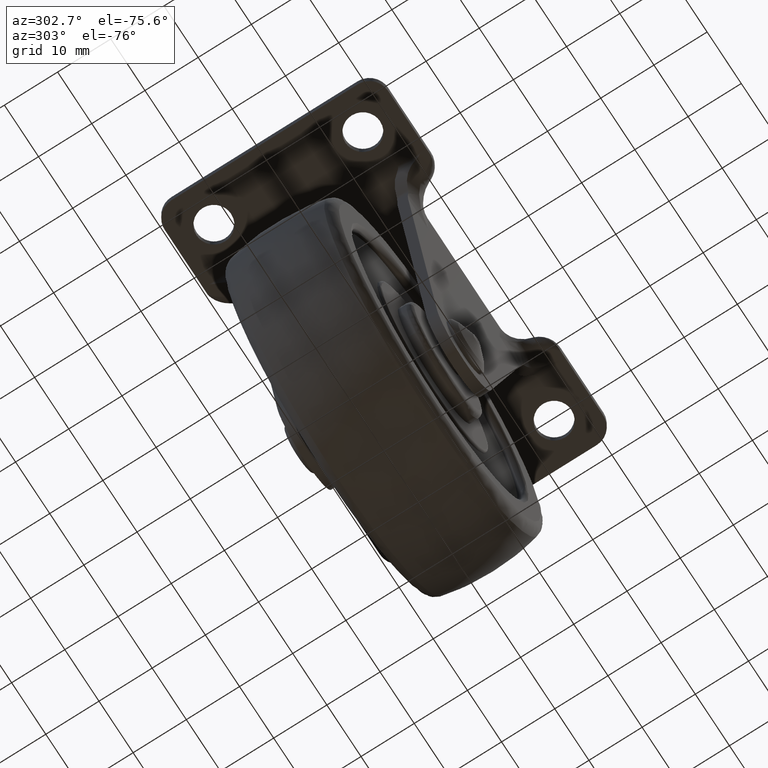
[diagram: clean part render]
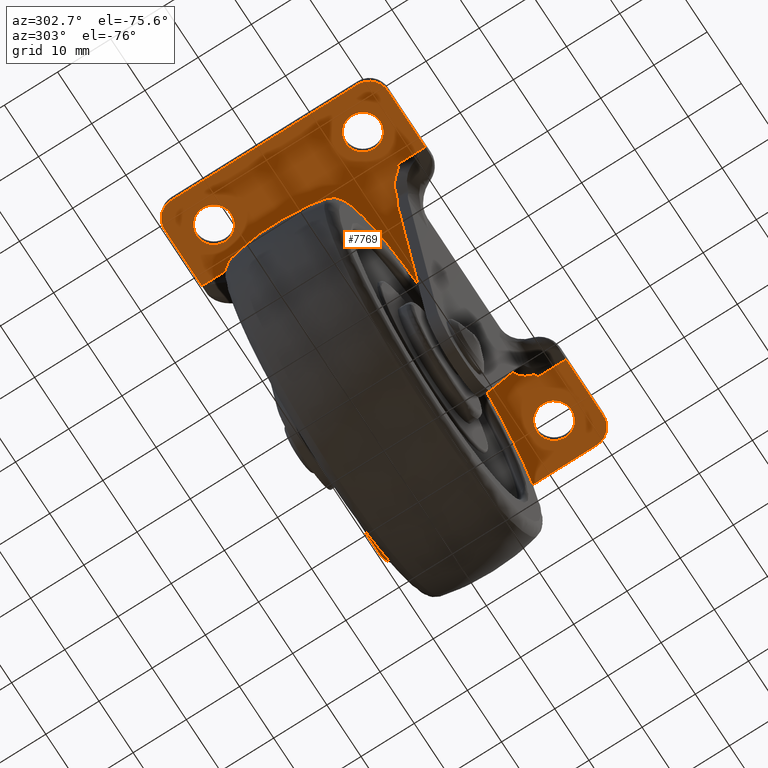
[diagram: same view with one face highlighted and labeled with its STEP entity id]
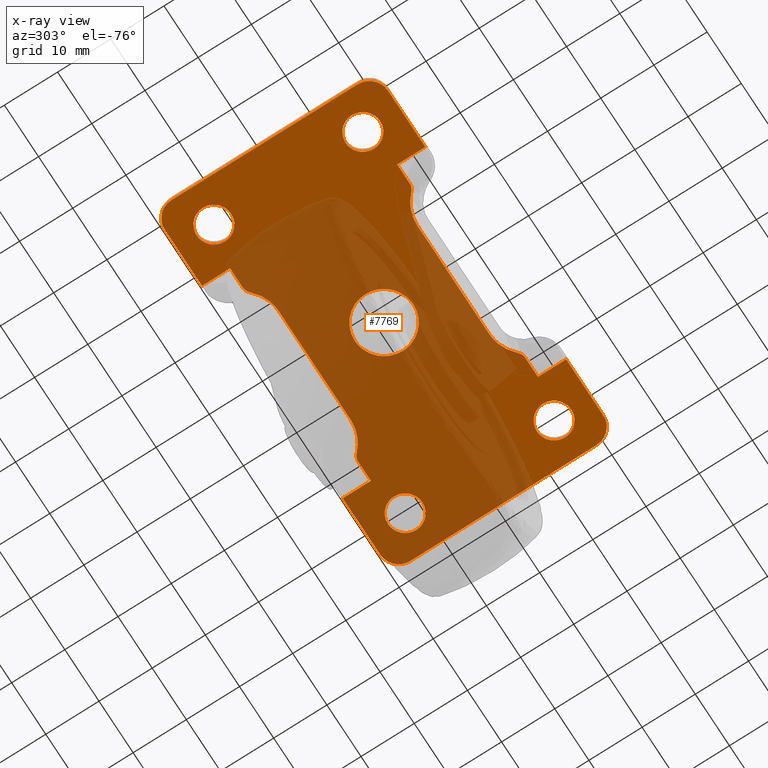
[diagram: x-ray of the same camera — body ghosted, the highlighted face saturated]
A machine part, auxiliary view. The second image highlights one B-rep face of the part: STEP entity #7769.
The next image is the same camera in x-ray: the body ghosted, the highlighted face saturated — about 63% of this face is hidden behind the body in this view.
In plain terms, the highlighted face is a freeform B-spline surface patch.
Its self-contained STEP definition (entity closure, byte-faithful):
#3572=CARTESIAN_POINT('',(-30.098661789977690,16.481556180181911,52.499999999991360));
#3573=VERTEX_POINT('',#3572);
#3574=CARTESIAN_POINT('',(-31.250000000000000,13.999999999999821,52.500000000000000));
#3575=VERTEX_POINT('',#3574);
#3576=CARTESIAN_POINT('',(-30.098661789977690,16.481556180181911,52.499999999991360));
#3577=CARTESIAN_POINT('',(-30.368329601986499,16.253791567625179,52.499999999992177));
#3578=CARTESIAN_POINT('',(-30.745030923500970,15.811276878713761,52.499999999993761));
#3579=CARTESIAN_POINT('',(-31.149033346961421,14.955750958150171,52.499999999996582));
#3580=CARTESIAN_POINT('',(-31.250274453536719,14.367705374948439,52.499999999998977));
#3581=CARTESIAN_POINT('',(-31.250000000000000,13.999999999999821,52.500000000000000));
#3582=B_SPLINE_CURVE_WITH_KNOTS('',3,(#3576,#3577,#3578,#3579,#3580,#3581),.UNSPECIFIED.,.F.,.U.,(4,1,1,4),(0.000000037711875,1.058860835155435,1.720636786568688,2.823627206410369),.UNSPECIFIED.);
#3583=EDGE_CURVE('',#3573,#3575,#3582,.T.);
#3642=CARTESIAN_POINT('',(-25.642533500496661,16.237152048780299,52.500000000007127));
#3643=VERTEX_POINT('',#3642);
#3649=CARTESIAN_POINT('',(-24.750000000000000,13.999999999999821,52.500000000000000));
#3650=VERTEX_POINT('',#3649);
#3651=CARTESIAN_POINT('',(-24.750000000000000,13.999999999999821,52.500000000000000));
#3652=CARTESIAN_POINT('',(-24.749746360557630,14.359886512240969,52.500000000001137));
#3653=CARTESIAN_POINT('',(-24.831968434644430,14.848059408246799,52.500000000002771));
#3654=CARTESIAN_POINT('',(-25.146350814995419,15.609688986308401,52.500000000004938));
#3655=CARTESIAN_POINT('',(-25.412377427759829,15.994880342580871,52.500000000006622));
#3656=CARTESIAN_POINT('',(-25.642533500496661,16.237152048780299,52.500000000007127));
#3657=B_SPLINE_CURVE_WITH_KNOTS('',3,(#3651,#3652,#3653,#3654,#3655,#3656),.UNSPECIFIED.,.F.,.U.,(4,1,1,4),(0.000000024653561,1.079529442259453,1.465052341899836,2.467473464617288),.UNSPECIFIED.);
#3658=EDGE_CURVE('',#3650,#3643,#3657,.T.);
#3660=CARTESIAN_POINT('',(-27.999998512203099,10.750000000000160,52.500000000000007));
#3661=VERTEX_POINT('',#3660);
#3662=CARTESIAN_POINT('',(-27.999998512203099,10.750000000000160,52.500000000000007));
#3663=CARTESIAN_POINT('',(-27.667608111232770,10.749821445492939,52.499999999999972));
#3664=CARTESIAN_POINT('',(-27.202415238764662,10.822027757390719,52.500000000000007));
#3665=CARTESIAN_POINT('',(-26.543765454467451,11.076108114923080,52.500000000000171));
#3666=CARTESIAN_POINT('',(-26.027485294385890,11.385524828995059,52.499999999999858));
#3667=CARTESIAN_POINT('',(-25.589332076850258,11.797632544753700,52.500000000000128));
#3668=CARTESIAN_POINT('',(-25.226421806796690,12.274646242852830,52.499999999999822));
#3669=CARTESIAN_POINT('',(-24.868945896578300,12.963223406565580,52.500000000000803));
#3670=CARTESIAN_POINT('',(-24.749696517338361,13.601120437263400,52.499999999999538));
#3671=CARTESIAN_POINT('',(-24.750000000000000,13.999999999999821,52.500000000000000));
#3672=B_SPLINE_CURVE_WITH_KNOTS('',3,(#3662,#3663,#3664,#3665,#3666,#3667,#3668,#3669,#3670,#3671),.UNSPECIFIED.,.F.,.U.,(4,1,1,1,1,1,1,4),(0.000000114481184,0.997092126575496,1.395934548560135,2.113858974554451,2.791832149275136,3.190693407932026,3.908608178187883,5.105119255801762),.UNSPECIFIED.);
#3673=EDGE_CURVE('',#3661,#3650,#3672,.T.);
#3675=CARTESIAN_POINT('',(-31.250000000000000,13.999999999999821,52.500000000000000));
#3676=CARTESIAN_POINT('',(-31.250328386182620,13.614410811597320,52.500000000000078));
#3677=CARTESIAN_POINT('',(-31.135033350657391,12.976506688446641,52.499999999999822));
#3678=CARTESIAN_POINT('',(-30.781679298603191,12.285230208732751,52.500000000000270));
#3679=CARTESIAN_POINT('',(-30.426783644027289,11.818841434631160,52.499999999999837));
#3680=CARTESIAN_POINT('',(-30.032685283972839,11.438958765962949,52.500000000000192));
#3681=CARTESIAN_POINT('',(-29.472818145901769,11.074691552133711,52.499999999999922));
#3682=CARTESIAN_POINT('',(-28.784349861490242,10.813972053740221,52.499999999999602));
#3683=CARTESIAN_POINT('',(-28.265889245304251,10.749938178102621,52.500000000000313));
#3684=CARTESIAN_POINT('',(-27.999998512203099,10.750000000000160,52.500000000000007));
#3685=B_SPLINE_CURVE_WITH_KNOTS('',3,(#3675,#3676,#3677,#3678,#3679,#3680,#3681,#3682,#3683,#3684),.UNSPECIFIED.,.F.,.U.,(4,1,1,1,1,1,1,4),(0.000000113969533,1.156626437965158,1.914428036371264,2.313287977202250,2.911501012921430,3.549651169805909,4.307458497366348,5.105120932906186),.UNSPECIFIED.);
#3686=EDGE_CURVE('',#3575,#3661,#3685,.T.);
#3705=CARTESIAN_POINT('',(-28.000001487796940,17.249999999999488,52.500000000000000));
#3706=VERTEX_POINT('',#3705);
#3707=CARTESIAN_POINT('',(-28.000001487796940,17.249999999999488,52.500000000000000));
#3708=CARTESIAN_POINT('',(-28.356522567413961,17.250241258936281,52.499999999998629));
#3709=CARTESIAN_POINT('',(-28.855437342599320,17.167032159722769,52.499999999996248));
#3710=CARTESIAN_POINT('',(-29.558930400750508,16.873794824928218,52.499999999993797));
#3711=CARTESIAN_POINT('',(-29.899087672862478,16.650417765858698,52.499999999992028));
#3712=CARTESIAN_POINT('',(-30.098661789977690,16.481556180181911,52.499999999991360));
#3713=B_SPLINE_CURVE_WITH_KNOTS('',3,(#3707,#3708,#3709,#3710,#3711,#3712),.UNSPECIFIED.,.F.,.U.,(4,1,1,4),(0.000000010974556,1.069466073523073,1.497251976314295,2.281527074584032),.UNSPECIFIED.);
#3714=EDGE_CURVE('',#3706,#3573,#3713,.T.);
#3716=CARTESIAN_POINT('',(-25.642533500496661,16.237152048780299,52.500000000007127));
#3717=CARTESIAN_POINT('',(-25.859937401773241,16.466463076348361,52.500000000006288));
#3718=CARTESIAN_POINT('',(-26.264092213434441,16.783532182090848,52.500000000005478));
#3719=CARTESIAN_POINT('',(-27.065997056766559,17.152493204050948,52.500000000002707));
#3720=CARTESIAN_POINT('',(-27.629042628810460,17.250247398830609,52.500000000000583));
#3721=CARTESIAN_POINT('',(-28.000001487796940,17.249999999999488,52.500000000000000));
#3722=B_SPLINE_CURVE_WITH_KNOTS('',3,(#3716,#3717,#3718,#3719,#3720,#3721),.UNSPECIFIED.,.F.,.U.,(4,1,1,4),(0.000000030440757,0.947912162226855,1.524889162315658,2.637647932548999),.UNSPECIFIED.);
#3723=EDGE_CURVE('',#3643,#3706,#3722,.T.);
#3776=CARTESIAN_POINT('',(-3.551581426019732,4.199556222064952,52.499999999997122));
#3777=VERTEX_POINT('',#3776);
#3778=CARTESIAN_POINT('',(-5.500000000000000,0.0,52.500000000000000));
#3779=VERTEX_POINT('',#3778);
#3780=CARTESIAN_POINT('',(-3.551581426019732,4.199556222064952,52.499999999997122));
#3781=CARTESIAN_POINT('',(-3.988900745824201,3.830136690288739,52.499999999997243));
#3782=CARTESIAN_POINT('',(-4.499153836608889,3.239008855041461,52.499999999997989));
#3783=CARTESIAN_POINT('',(-5.015037824932064,2.299574592953851,52.499999999998202));
#3784=CARTESIAN_POINT('',(-5.382011587960756,1.343822855673017,52.499999999999247));
#3785=CARTESIAN_POINT('',(-5.500219460398634,0.522666781126346,52.499999999999673));
#3786=CARTESIAN_POINT('',(-5.500000000000000,0.0,52.500000000000000));
#3787=B_SPLINE_CURVE_WITH_KNOTS('',3,(#3780,#3781,#3782,#3783,#3784,#3785,#3786),.UNSPECIFIED.,.F.,.U.,(4,1,1,1,4),(0.000000026304917,1.717261919507664,2.314571365826936,3.210516888121754,4.778445691131342),.UNSPECIFIED.);
#3788=EDGE_CURVE('',#3777,#3779,#3787,.T.);
#3852=CARTESIAN_POINT('',(3.989558783508025,3.785950024211681,52.500000000008043));
#3853=VERTEX_POINT('',#3852);
#3859=CARTESIAN_POINT('',(5.500000000000000,0.0,52.500000000000000));
#3860=VERTEX_POINT('',#3859);
#3861=CARTESIAN_POINT('',(5.500000000000000,0.0,52.500000000000000));
#3862=CARTESIAN_POINT('',(5.500078159788325,0.413226645726852,52.500000000000753));
#3863=CARTESIAN_POINT('',(5.406434155477175,1.239634597800339,52.500000000002942));
#3864=CARTESIAN_POINT('',(4.941894710706263,2.561125299682399,52.500000000004803));
#3865=CARTESIAN_POINT('',(4.379037481905658,3.375959660547900,52.500000000007631));
#3866=CARTESIAN_POINT('',(3.989558783508025,3.785950024211681,52.500000000008043));
#3867=B_SPLINE_CURVE_WITH_KNOTS('',3,(#3861,#3862,#3863,#3864,#3865,#3866),.UNSPECIFIED.,.F.,.U.,(4,1,1,4),(0.000000021852081,1.239671201343833,2.479326911721378,4.175724684555684),.UNSPECIFIED.);
#3868=EDGE_CURVE('',#3860,#3853,#3867,.T.);
#3870=CARTESIAN_POINT('',(0.000001138689718,-5.499999999999882,52.500000000000000));
#3871=VERTEX_POINT('',#3870);
#3872=CARTESIAN_POINT('',(0.000001138689718,-5.499999999999882,52.500000000000000));
#3873=CARTESIAN_POINT('',(0.404973006984577,-5.500065852747665,52.500000000000071));
#3874=CARTESIAN_POINT('',(1.124897220854954,-5.420126004937364,52.499999999999808));
#3875=CARTESIAN_POINT('',(2.007496584686009,-5.140485679887812,52.500000000000178));
#3876=CARTESIAN_POINT('',(2.738639474441271,-4.789137310518288,52.499999999999829));
#3877=CARTESIAN_POINT('',(3.567873710661660,-4.242644513432174,52.500000000000043));
#3878=CARTESIAN_POINT('',(4.376464157359985,-3.413877611620072,52.500000000000362));
#3879=CARTESIAN_POINT('',(4.969093111110061,-2.424872621588161,52.499999999999318));
#3880=CARTESIAN_POINT('',(5.384820117807943,-1.327306263827927,52.500000000000398));
#3881=CARTESIAN_POINT('',(5.500189096772617,-0.517487068537187,52.500000000000057));
#3882=CARTESIAN_POINT('',(5.500000000000000,0.0,52.500000000000000));
#3883=B_SPLINE_CURVE_WITH_KNOTS('',3,(#3872,#3873,#3874,#3875,#3876,#3877,#3878,#3879,#3880,#3881,#3882),.UNSPECIFIED.,.F.,.U.,(4,1,1,1,1,1,1,1,4),(0.000000089295414,1.214913431097486,2.159858841467408,2.767321581127794,3.644786817583049,5.129656969635695,6.209587930329921,7.087036722392178,8.639433364029008),.UNSPECIFIED.);
#3884=EDGE_CURVE('',#3871,#3860,#3883,.T.);
#3886=CARTESIAN_POINT('',(-5.500000000000000,0.0,52.500000000000000));
#3887=CARTESIAN_POINT('',(-5.500354852466589,-0.585001209462418,52.500000000000092));
#3888=CARTESIAN_POINT('',(-5.336871856045019,-1.597213310112597,52.499999999999993));
#3889=CARTESIAN_POINT('',(-4.782415114103307,-2.788288179080238,52.499999999999801));
#3890=CARTESIAN_POINT('',(-4.168997815071223,-3.625929759843924,52.500000000000277));
#3891=CARTESIAN_POINT('',(-3.409442052118405,-4.367221919094090,52.499999999999922));
#3892=CARTESIAN_POINT('',(-2.432743184867703,-4.985733389093027,52.499999999999808));
#3893=CARTESIAN_POINT('',(-1.237370091658040,-5.405074302908625,52.500000000000220));
#3894=CARTESIAN_POINT('',(-0.427476091015921,-5.500099297321536,52.499999999999453));
#3895=CARTESIAN_POINT('',(0.000001138689718,-5.499999999999882,52.500000000000000));
#3896=B_SPLINE_CURVE_WITH_KNOTS('',3,(#3886,#3887,#3888,#3889,#3890,#3891,#3892,#3893,#3894,#3895),.UNSPECIFIED.,.F.,.U.,(4,1,1,1,1,1,1,4),(0.000000088900757,1.754884981003581,3.037308870661370,3.914773852422925,4.859679062923863,6.209588853069683,7.357021990557816,8.639434647605755),.UNSPECIFIED.);
#3897=EDGE_CURVE('',#3779,#3871,#3896,.T.);
#3916=CARTESIAN_POINT('',(-0.000001138689795,5.499999999999882,52.500000000000000));
#3917=VERTEX_POINT('',#3916);
#3918=CARTESIAN_POINT('',(-0.000001138689795,5.499999999999882,52.500000000000000));
#3919=CARTESIAN_POINT('',(-0.361970635149833,5.500049089881307,52.499999999999673));
#3920=CARTESIAN_POINT('',(-0.985339900924180,5.438221140726245,52.499999999999282));
#3921=CARTESIAN_POINT('',(-1.957200905857065,5.170621038181984,52.499999999998387));
#3922=CARTESIAN_POINT('',(-2.796974228034498,4.770917603442313,52.499999999997691));
#3923=CARTESIAN_POINT('',(-3.336624025955320,4.381354867170856,52.499999999997407));
#3924=CARTESIAN_POINT('',(-3.551581426019732,4.199556222064952,52.499999999997122));
#3925=B_SPLINE_CURVE_WITH_KNOTS('',3,(#3918,#3919,#3920,#3921,#3922,#3923,#3924),.UNSPECIFIED.,.F.,.U.,(4,1,1,1,4),(0.000000019436184,1.085904343702968,1.870180934309537,3.016398949008563,3.860989230047137),.UNSPECIFIED.);
#3926=EDGE_CURVE('',#3917,#3777,#3925,.T.);
#3928=CARTESIAN_POINT('',(3.989558783508025,3.785950024211681,52.500000000008043));
#3929=CARTESIAN_POINT('',(3.605664526524810,4.190913180013308,52.500000000007233));
#3930=CARTESIAN_POINT('',(2.992049273899332,4.666016291600760,52.500000000005912));
#3931=CARTESIAN_POINT('',(2.006588621704444,5.142188967490433,52.500000000004427));
#3932=CARTESIAN_POINT('',(1.115898328980586,5.421969244737726,52.500000000001251));
#3933=CARTESIAN_POINT('',(0.395227546658565,5.500071724916941,52.500000000001442));
#3934=CARTESIAN_POINT('',(-0.000001138689795,5.499999999999882,52.500000000000000));
#3935=B_SPLINE_CURVE_WITH_KNOTS('',3,(#3928,#3929,#3930,#3931,#3932,#3933,#3934),.UNSPECIFIED.,.F.,.U.,(4,1,1,1,4),(0.000000026247402,1.673892032973929,2.301586752702686,3.278036600693514,4.463710417301790),.UNSPECIFIED.);
#3936=EDGE_CURVE('',#3853,#3917,#3935,.T.);
#3990=CARTESIAN_POINT('',(25.901338210022310,16.481556180181911,52.499999999991353));
#3991=VERTEX_POINT('',#3990);
#3992=CARTESIAN_POINT('',(24.750000000000000,13.999999999999821,52.500000000000000));
#3993=VERTEX_POINT('',#3992);
#3994=CARTESIAN_POINT('',(25.901338210022310,16.481556180181911,52.499999999991353));
#3995=CARTESIAN_POINT('',(25.710417929834239,16.320147047529471,52.499999999991921));
#3996=CARTESIAN_POINT('',(25.345813484526200,15.931409304546699,52.499999999993399));
#3997=CARTESIAN_POINT('',(24.977227385932959,15.271042592412689,52.499999999995211));
#3998=CARTESIAN_POINT('',(24.786428552931010,14.602958257901800,52.499999999998650));
#3999=CARTESIAN_POINT('',(24.749986172022950,14.191181056748690,52.499999999998678));
#4000=CARTESIAN_POINT('',(24.750000000000000,13.999999999999821,52.500000000000000));
#4001=B_SPLINE_CURVE_WITH_KNOTS('',3,(#3994,#3995,#3996,#3997,#3998,#3999,#4000),.UNSPECIFIED.,.F.,.U.,(4,1,1,1,4),(0.000000037713403,0.750027081717976,1.588274717514533,2.250079523646392,2.823627206410403),.UNSPECIFIED.);
#4002=EDGE_CURVE('',#3991,#3993,#4001,.T.);
#4062=CARTESIAN_POINT('',(30.357466499503339,16.237152048780299,52.500000000007127));
#4063=VERTEX_POINT('',#4062);
#4069=CARTESIAN_POINT('',(31.250000000000000,13.999999999999821,52.500000000000000));
#4070=VERTEX_POINT('',#4069);
#4071=CARTESIAN_POINT('',(31.250000000000000,13.999999999999821,52.500000000000000));
#4072=CARTESIAN_POINT('',(31.250241723379411,14.359871317779101,52.500000000001123));
#4073=CARTESIAN_POINT('',(31.146449651792480,14.976582000014851,52.500000000002977));
#4074=CARTESIAN_POINT('',(30.785547589399481,15.722109410076730,52.500000000005898));
#4075=CARTESIAN_POINT('',(30.499015674080798,16.088009603694641,52.500000000006203));
#4076=CARTESIAN_POINT('',(30.357466499503339,16.237152048780299,52.500000000007127));
#4077=B_SPLINE_CURVE_WITH_KNOTS('',3,(#4071,#4072,#4073,#4074,#4075,#4076),.UNSPECIFIED.,.F.,.U.,(4,1,1,4),(0.000000024656867,1.079529442261325,1.850605107540133,2.467473464617248),.UNSPECIFIED.);
#4078=EDGE_CURVE('',#4070,#4063,#4077,.T.);
#4080=CARTESIAN_POINT('',(28.000001487796890,10.750000000000160,52.499999999999993));
#4081=VERTEX_POINT('',#4080);
#4082=CARTESIAN_POINT('',(28.000001487796890,10.750000000000160,52.499999999999993));
#4083=CARTESIAN_POINT('',(28.398890265591302,10.749666302526210,52.500000000000107));
#4084=CARTESIAN_POINT('',(29.036760892713950,10.868989452335921,52.499999999999723));
#4085=CARTESIAN_POINT('',(29.784735433451552,11.257205294546280,52.500000000000362));
#4086=CARTESIAN_POINT('',(30.230718185205589,11.618681518487390,52.499999999999602));
#4087=CARTESIAN_POINT('',(30.597453765432419,12.023319121603590,52.500000000000362));
#4088=CARTESIAN_POINT('',(30.925314407182309,12.527172023832470,52.499999999999517));
#4089=CARTESIAN_POINT('',(31.186032674122892,13.215651515823099,52.500000000000803));
#4090=CARTESIAN_POINT('',(31.250054301078890,13.734109797403500,52.499999999999218));
#4091=CARTESIAN_POINT('',(31.250000000000000,13.999999999999821,52.500000000000000));
#4092=B_SPLINE_CURVE_WITH_KNOTS('',3,(#4082,#4083,#4084,#4085,#4086,#4087,#4088,#4089,#4090,#4091),.UNSPECIFIED.,.F.,.U.,(4,1,1,1,1,1,1,4),(0.000000114502678,1.196510939627053,1.914427407155122,2.512710559394672,2.911500054466228,3.549650002969130,4.307457081604380,5.105119255801761),.UNSPECIFIED.);
#4093=EDGE_CURVE('',#4081,#4070,#4092,.T.);
#4095=CARTESIAN_POINT('',(24.750000000000000,13.999999999999821,52.500000000000000));
#4096=CARTESIAN_POINT('',(24.749957672425879,13.760698296657280,52.500000000000057));
#4097=CARTESIAN_POINT('',(24.801623563254630,13.295407530996719,52.499999999999929));
#4098=CARTESIAN_POINT('',(25.027945284039909,12.624072707883130,52.500000000000107));
#4099=CARTESIAN_POINT('',(25.385531114684952,12.027487607352951,52.499999999999851));
#4100=CARTESIAN_POINT('',(25.797633188038361,11.589332742421130,52.500000000000128));
#4101=CARTESIAN_POINT('',(26.274643692658810,11.226407907809341,52.499999999999929));
#4102=CARTESIAN_POINT('',(26.963238510898229,10.869004582055100,52.500000000000050));
#4103=CARTESIAN_POINT('',(27.601111563927009,10.749644375945580,52.499999999999993));
#4104=CARTESIAN_POINT('',(28.000001487796890,10.750000000000160,52.499999999999993));
#4105=B_SPLINE_CURVE_WITH_KNOTS('',3,(#4095,#4096,#4097,#4098,#4099,#4100,#4101,#4102,#4103,#4104),.UNSPECIFIED.,.F.,.U.,(4,1,1,1,1,1,1,4),(0.000000113970027,0.717899858569404,1.395935006663654,2.113859669043706,2.791833067328239,3.190694457710095,3.908609462146321,5.105120932906185),.UNSPECIFIED.);
#4106=EDGE_CURVE('',#3993,#4081,#4105,.T.);
#4125=CARTESIAN_POINT('',(27.999998512203049,17.249999999999481,52.499999999999993));
#4126=VERTEX_POINT('',#4125);
#4127=CARTESIAN_POINT('',(27.999998512203049,17.249999999999481,52.499999999999993));
#4128=CARTESIAN_POINT('',(27.643476276765991,17.250241120369619,52.499999999998550));
#4129=CARTESIAN_POINT('',(27.144561212233590,17.167033941852139,52.499999999996511));
#4130=CARTESIAN_POINT('',(26.441073892626981,16.873789267448281,52.499999999993548));
#4131=CARTESIAN_POINT('',(26.100906227405162,16.650426323483320,52.499999999992177));
#4132=CARTESIAN_POINT('',(25.901338210022310,16.481556180181911,52.499999999991353));
#4133=B_SPLINE_CURVE_WITH_KNOTS('',3,(#4127,#4128,#4129,#4130,#4131,#4132),.UNSPECIFIED.,.F.,.U.,(4,1,1,4),(0.000000010973209,1.069466073522553,1.497251976314104,2.281527074584023),.UNSPECIFIED.);
#4134=EDGE_CURVE('',#4126,#3991,#4133,.T.);
#4136=CARTESIAN_POINT('',(30.357466499503339,16.237152048780299,52.500000000007127));
#4137=CARTESIAN_POINT('',(30.196727116286660,16.406572343982550,52.500000000006636));
#4138=CARTESIAN_POINT('',(29.806939936637750,16.737408416853171,52.500000000005471));
#4139=CARTESIAN_POINT('',(29.016456423106341,17.138251608488950,52.500000000003112));
#4140=CARTESIAN_POINT('',(28.370940522358381,17.250230016958820,52.500000000000988));
#4141=CARTESIAN_POINT('',(27.999998512203049,17.249999999999481,52.499999999999993));
#4142=B_SPLINE_CURVE_WITH_KNOTS('',3,(#4136,#4137,#4138,#4139,#4140,#4141),.UNSPECIFIED.,.F.,.U.,(4,1,1,4),(0.000000030442211,0.700625835264814,1.524889162315780,2.637647932549004),.UNSPECIFIED.);
#4143=EDGE_CURVE('',#4063,#4126,#4142,.T.);
#4197=CARTESIAN_POINT('',(25.901338210022310,-11.518443819817911,52.499999999991360));
#4198=VERTEX_POINT('',#4197);
#4199=CARTESIAN_POINT('',(24.750000000000000,-14.0,52.500000000000000));
#4200=VERTEX_POINT('',#4199);
#4201=CARTESIAN_POINT('',(25.901338210022310,-11.518443819817911,52.499999999991360));
#4202=CARTESIAN_POINT('',(25.631685974489152,-11.746217326469599,52.499999999992298));
#4203=CARTESIAN_POINT('',(25.196914606575149,-12.256761711557770,52.499999999993392));
#4204=CARTESIAN_POINT('',(24.826268620167308,-13.132341512329420,52.499999999998600));
#4205=CARTESIAN_POINT('',(24.749933439792368,-13.720576971699559,52.499999999997542));
#4206=CARTESIAN_POINT('',(24.750000000000000,-14.0,52.500000000000000));
#4207=B_SPLINE_CURVE_WITH_KNOTS('',3,(#4201,#4202,#4203,#4204,#4205,#4206),.UNSPECIFIED.,.F.,.U.,(4,1,1,4),(0.000000037712876,1.058860835155901,1.985361304846911,2.823627206410396),.UNSPECIFIED.);
#4208=EDGE_CURVE('',#4198,#4200,#4207,.T.);
#4270=CARTESIAN_POINT('',(30.357466499503339,-11.762847951219520,52.500000000007127));
#4271=VERTEX_POINT('',#4270);
#4277=CARTESIAN_POINT('',(31.250000000000000,-14.0,52.500000000000000));
#4278=VERTEX_POINT('',#4277);
#4279=CARTESIAN_POINT('',(31.250000000000000,-14.0,52.500000000000000));
#4280=CARTESIAN_POINT('',(31.250169857604039,-13.665843525080010,52.500000000001002));
#4281=CARTESIAN_POINT('',(31.160002412943179,-13.087631943389381,52.500000000002970));
#4282=CARTESIAN_POINT('',(30.821586405555720,-12.332251193164209,52.500000000005343));
#4283=CARTESIAN_POINT('',(30.525582372097858,-11.939937593831550,52.500000000006580));
#4284=CARTESIAN_POINT('',(30.357466499503339,-11.762847951219520,52.500000000007127));
#4285=B_SPLINE_CURVE_WITH_KNOTS('',3,(#4279,#4280,#4281,#4282,#4283,#4284),.UNSPECIFIED.,.F.,.U.,(4,1,1,4),(0.000000024654200,1.002421241344880,1.734939679346724,2.467473464617278),.UNSPECIFIED.);
#4286=EDGE_CURVE('',#4278,#4271,#4285,.T.);
#4288=CARTESIAN_POINT('',(28.000001487796901,-17.249999999999659,52.500000000000000));
#4289=VERTEX_POINT('',#4288);
#4290=CARTESIAN_POINT('',(28.000001487796901,-17.249999999999659,52.500000000000000));
#4291=CARTESIAN_POINT('',(28.385600637514180,-17.250327682109511,52.499999999999979));
#4292=CARTESIAN_POINT('',(28.903861769974210,-17.156642748025401,52.500000000000021));
#4293=CARTESIAN_POINT('',(29.573562642957121,-16.859670125588661,52.499999999999993));
#4294=CARTESIAN_POINT('',(30.144790643250928,-16.488307550588349,52.500000000000000));
#4295=CARTESIAN_POINT('',(30.644914433282839,-15.943171496846229,52.500000000000092));
#4296=CARTESIAN_POINT('',(31.011585637908482,-15.276767939672320,52.500000000000149));
#4297=CARTESIAN_POINT('',(31.205493782482900,-14.664723147607470,52.499999999999041));
#4298=CARTESIAN_POINT('',(31.250016958741909,-14.212709580675590,52.500000000000753));
#4299=CARTESIAN_POINT('',(31.250000000000000,-14.0,52.500000000000000));
#4300=B_SPLINE_CURVE_WITH_KNOTS('',3,(#4290,#4291,#4292,#4293,#4294,#4295,#4296,#4297,#4298,#4299),.UNSPECIFIED.,.F.,.U.,(4,1,1,1,1,1,1,4),(0.000000114482534,1.156626058423703,1.555470335478202,2.193620279158552,3.190693407932147,3.749070760498161,4.466985529434206,5.105119255801870),.UNSPECIFIED.);
#4301=EDGE_CURVE('',#4289,#4278,#4300,.T.);
#4303=CARTESIAN_POINT('',(24.750000000000000,-14.0,52.500000000000000));
#4304=CARTESIAN_POINT('',(24.749988459764008,-14.212707544024120,52.499999999999943));
#4305=CARTESIAN_POINT('',(24.801000287421122,-14.731223993138480,52.500000000000092));
#4306=CARTESIAN_POINT('',(25.036609767905549,-15.402697778021260,52.499999999999993));
#4307=CARTESIAN_POINT('',(25.457848804901982,-16.067851955475170,52.499999999999957));
#4308=CARTESIAN_POINT('',(25.970090444359890,-16.580118627518630,52.500000000000227));
#4309=CARTESIAN_POINT('',(26.647014774686369,-16.985820208799542,52.499999999999382));
#4310=CARTESIAN_POINT('',(27.321986830690228,-17.204181691633359,52.500000000000362));
#4311=CARTESIAN_POINT('',(27.787290542683941,-17.250021824578418,52.499999999999879));
#4312=CARTESIAN_POINT('',(28.000001487796901,-17.249999999999659,52.500000000000000));
#4313=B_SPLINE_CURVE_WITH_KNOTS('',3,(#4303,#4304,#4305,#4306,#4307,#4308,#4309,#4310,#4311,#4312),.UNSPECIFIED.,.F.,.U.,(4,1,1,1,1,1,1,4),(0.000000113975352,0.638138921713469,1.555470846247699,2.113859669045047,2.991262029376654,3.709186364515339,4.466986997800219,5.105120932906184),.UNSPECIFIED.);
#4314=EDGE_CURVE('',#4200,#4289,#4313,.T.);
#4333=CARTESIAN_POINT('',(27.999998512203049,-10.750000000000339,52.500000000000000));
#4334=VERTEX_POINT('',#4333);
#4335=CARTESIAN_POINT('',(27.999998512203049,-10.750000000000339,52.500000000000000));
#4336=CARTESIAN_POINT('',(27.643476016007309,-10.749759633052630,52.499999999998643));
#4337=CARTESIAN_POINT('',(27.144563382970869,-10.832967393976990,52.499999999996348));
#4338=CARTESIAN_POINT('',(26.441068776238179,-11.126205723482821,52.499999999993683));
#4339=CARTESIAN_POINT('',(26.100913024833300,-11.349581712373629,52.499999999992127));
#4340=CARTESIAN_POINT('',(25.901338210022310,-11.518443819817911,52.499999999991360));
#4341=B_SPLINE_CURVE_WITH_KNOTS('',3,(#4335,#4336,#4337,#4338,#4339,#4340),.UNSPECIFIED.,.F.,.U.,(4,1,1,4),(0.000000010973632,1.069466073522577,1.497251976314060,2.281527074584032),.UNSPECIFIED.);
#4342=EDGE_CURVE('',#4334,#4198,#4341,.T.);
#4344=CARTESIAN_POINT('',(30.357466499503339,-11.762847951219520,52.500000000007127));
#4345=CARTESIAN_POINT('',(30.092872435950571,-11.483595466427250,52.500000000006487));
#4346=CARTESIAN_POINT('',(29.564197247415450,-11.095453157038760,52.500000000004199));
#4347=CARTESIAN_POINT('',(28.728079701833209,-10.803520434783771,52.500000000002963));
#4348=CARTESIAN_POINT('',(28.233539821317269,-10.749967645687970,52.500000000000050));
#4349=CARTESIAN_POINT('',(27.999998512203049,-10.750000000000339,52.500000000000000));
#4350=B_SPLINE_CURVE_WITH_KNOTS('',3,(#4344,#4345,#4346,#4347,#4348,#4349),.UNSPECIFIED.,.F.,.U.,(4,1,1,4),(0.000000030442029,1.153984198535427,1.937022127717679,2.637647932548985),.UNSPECIFIED.);
#4351=EDGE_CURVE('',#4271,#4334,#4350,.T.);
#4404=CARTESIAN_POINT('',(-30.098661789977690,-11.518443819817911,52.499999999991360));
#4405=VERTEX_POINT('',#4404);
#4406=CARTESIAN_POINT('',(-31.250000000000000,-14.0,52.500000000000000));
#4407=VERTEX_POINT('',#4406);
#4408=CARTESIAN_POINT('',(-30.098661789977690,-11.518443819817911,52.499999999991360));
#4409=CARTESIAN_POINT('',(-30.289594196868830,-11.679844936084320,52.499999999991921));
#4410=CARTESIAN_POINT('',(-30.593363636802550,-12.003843182912171,52.499999999993122));
#4411=CARTESIAN_POINT('',(-30.971426088216671,-12.620631683846430,52.499999999995090));
#4412=CARTESIAN_POINT('',(-31.198948371264290,-13.279388558688400,52.499999999997797));
#4413=CARTESIAN_POINT('',(-31.250020994196909,-13.779407758475299,52.499999999998927));
#4414=CARTESIAN_POINT('',(-31.250000000000000,-14.0,52.500000000000000));
#4415=B_SPLINE_CURVE_WITH_KNOTS('',3,(#4408,#4409,#4410,#4411,#4412,#4413,#4414),.UNSPECIFIED.,.F.,.U.,(4,1,1,1,4),(0.000000037714174,0.750027081718925,1.323588890390183,2.161840666066802,2.823627206410369),.UNSPECIFIED.);
#4416=EDGE_CURVE('',#4405,#4407,#4415,.T.);
#4478=CARTESIAN_POINT('',(-25.642533500496668,-11.762847951219520,52.500000000007127));
#4479=VERTEX_POINT('',#4478);
#4485=CARTESIAN_POINT('',(-24.750000000000000,-14.0,52.500000000000000));
#4486=VERTEX_POINT('',#4485);
#4487=CARTESIAN_POINT('',(-24.750000000000000,-14.0,52.500000000000000));
#4488=CARTESIAN_POINT('',(-24.749985890711589,-13.794379872718100,52.500000000000561));
#4489=CARTESIAN_POINT('',(-24.794016410917521,-13.331730286063630,52.500000000002153));
#4490=CARTESIAN_POINT('',(-25.045403130940379,-12.542511644111290,52.500000000004711));
#4491=CARTESIAN_POINT('',(-25.394646641378881,-12.023726658741460,52.500000000006203));
#4492=CARTESIAN_POINT('',(-25.642533500496668,-11.762847951219520,52.500000000007127));
#4493=B_SPLINE_CURVE_WITH_KNOTS('',3,(#4487,#4488,#4489,#4490,#4491,#4492),.UNSPECIFIED.,.F.,.U.,(4,1,1,4),(0.000000024650320,0.616868400368780,1.387944205481256,2.467473464617303),.UNSPECIFIED.);
#4494=EDGE_CURVE('',#4486,#4479,#4493,.T.);
#4496=CARTESIAN_POINT('',(-27.999998512203110,-17.249999999999659,52.499999999999993));
#4497=VERTEX_POINT('',#4496);
#4498=CARTESIAN_POINT('',(-27.999998512203110,-17.249999999999659,52.499999999999993));
#4499=CARTESIAN_POINT('',(-27.667616596015090,-17.250167142100700,52.499999999999908));
#4500=CARTESIAN_POINT('',(-27.029577177761901,-17.151237162142991,52.500000000000007));
#4501=CARTESIAN_POINT('',(-26.242898772113669,-16.773300512173169,52.500000000000149));
#4502=CARTESIAN_POINT('',(-25.636372406350930,-16.269176406398500,52.499999999999901));
#4503=CARTESIAN_POINT('',(-25.219715424761532,-15.728457668175370,52.499999999999972));
#4504=CARTESIAN_POINT('',(-24.855390325788601,-14.970312196544240,52.499999999999929));
#4505=CARTESIAN_POINT('',(-24.749664167843839,-14.385594900859740,52.499999999999879));
#4506=CARTESIAN_POINT('',(-24.750000000000000,-14.0,52.500000000000000));
#4507=B_SPLINE_CURVE_WITH_KNOTS('',3,(#4498,#4499,#4500,#4501,#4502,#4503,#4504,#4505,#4506),.UNSPECIFIED.,.F.,.U.,(4,1,1,1,1,1,4),(0.000000114472532,0.997092126567902,1.914427407136650,2.592408598900111,3.350221856139716,3.948493792632700,5.105119255801863),.UNSPECIFIED.);
#4508=EDGE_CURVE('',#4497,#4486,#4507,.T.);
#4510=CARTESIAN_POINT('',(-31.250000000000000,-14.0,52.500000000000000));
#4511=CARTESIAN_POINT('',(-31.250045970799409,-14.239302479182850,52.500000000000050));
#4512=CARTESIAN_POINT('',(-31.199845887073060,-14.691296245093101,52.499999999999893));
#4513=CARTESIAN_POINT('',(-31.015471342846691,-15.249414125104250,52.500000000000142));
#4514=CARTESIAN_POINT('',(-30.745567918461209,-15.769645315697501,52.499999999999929));
#4515=CARTESIAN_POINT('',(-30.397315697996291,-16.227365773294949,52.500000000000092));
#4516=CARTESIAN_POINT('',(-29.904574426967809,-16.657688315040922,52.499999999999929));
#4517=CARTESIAN_POINT('',(-29.327509694027398,-16.994050852964289,52.500000000000043));
#4518=CARTESIAN_POINT('',(-28.678020133033669,-17.204195193435499,52.500000000000007));
#4519=CARTESIAN_POINT('',(-28.212707377727060,-17.250014496031859,52.500000000000007));
#4520=CARTESIAN_POINT('',(-27.999998512203110,-17.249999999999659,52.499999999999993));
#4521=B_SPLINE_CURVE_WITH_KNOTS('',3,(#4510,#4511,#4512,#4513,#4514,#4515,#4516,#4517,#4518,#4519,#4520),.UNSPECIFIED.,.F.,.U.,(4,1,1,1,1,1,1,1,4),(0.000000113967960,0.717899858567641,1.356048750159989,1.754898676116354,2.472810810103076,3.071027489689437,3.709186364514681,4.466986997800043,5.105120932906184),.UNSPECIFIED.);
#4522=EDGE_CURVE('',#4407,#4497,#4521,.T.);
#4541=CARTESIAN_POINT('',(-28.000001487796940,-10.750000000000339,52.500000000000000));
#4542=VERTEX_POINT('',#4541);
#4543=CARTESIAN_POINT('',(-28.000001487796940,-10.750000000000339,52.500000000000000));
#4544=CARTESIAN_POINT('',(-28.213891415173322,-10.749978241913830,52.499999999999211));
#4545=CARTESIAN_POINT('',(-28.665427483474222,-10.794722853083810,52.499999999997179));
#4546=CARTESIAN_POINT('',(-29.394728901992220,-11.025959857395851,52.499999999994273));
#4547=CARTESIAN_POINT('',(-29.862820207887140,-11.318859220320240,52.499999999992362));
#4548=CARTESIAN_POINT('',(-30.098661789977690,-11.518443819817911,52.499999999991360));
#4549=B_SPLINE_CURVE_WITH_KNOTS('',3,(#4543,#4544,#4545,#4546,#4547,#4548),.UNSPECIFIED.,.F.,.U.,(4,1,1,4),(0.000000010974770,0.641679519353963,1.354656371124857,2.281527074584032),.UNSPECIFIED.);
#4550=EDGE_CURVE('',#4542,#4405,#4549,.T.);
#4552=CARTESIAN_POINT('',(-25.642533500496668,-11.762847951219520,52.500000000007127));
#4553=CARTESIAN_POINT('',(-25.850499869967660,-11.543532302729290,52.500000000006487));
#4554=CARTESIAN_POINT('',(-26.306509060998899,-11.180919242797740,52.500000000005237));
#4555=CARTESIAN_POINT('',(-27.120839182052819,-10.831070708007310,52.500000000002153));
#4556=CARTESIAN_POINT('',(-27.697760213426040,-10.749882741511909,52.500000000001457));
#4557=CARTESIAN_POINT('',(-28.000001487796940,-10.750000000000339,52.500000000000000));
#4558=B_SPLINE_CURVE_WITH_KNOTS('',3,(#4552,#4553,#4554,#4555,#4556,#4557),.UNSPECIFIED.,.F.,.U.,(4,1,1,4),(0.000000030438976,0.906693037499885,1.730954925500070,2.637647932548980),.UNSPECIFIED.);
#4559=EDGE_CURVE('',#4479,#4542,#4558,.T.);
#5437=CARTESIAN_POINT('',(20.625945627621100,-15.708497377870801,52.500000000000000));
#5438=VERTEX_POINT('',#5437);
#5464=CARTESIAN_POINT('',(20.625945627621050,-21.0,52.500000000000000));
#5465=VERTEX_POINT('',#5464);
#5466=CARTESIAN_POINT('',(20.625945627621050,-21.0,52.500000000000000));
#5467=CARTESIAN_POINT('',(20.625945627621100,-15.708497377870801,52.500000000000000));
#5468=QUASI_UNIFORM_CURVE('',1,(#5466,#5467),.UNSPECIFIED.,.F.,.U.);
#5469=EDGE_CURVE('',#5465,#5438,#5468,.T.);
#5619=CARTESIAN_POINT('',(-20.625945627621100,-15.708497377870801,52.500000000000000));
#5620=VERTEX_POINT('',#5619);
#5649=CARTESIAN_POINT('',(-20.625945627621100,-21.0,52.500000000000000));
#5650=VERTEX_POINT('',#5649);
#5671=CARTESIAN_POINT('',(-20.625945627621100,-15.708497377870801,52.500000000000000));
#5672=CARTESIAN_POINT('',(-20.625945627621100,-21.0,52.500000000000000));
#5673=QUASI_UNIFORM_CURVE('',1,(#5671,#5672),.UNSPECIFIED.,.F.,.U.);
#5674=EDGE_CURVE('',#5620,#5650,#5673,.T.);
#5695=CARTESIAN_POINT('',(-20.625945627621100,21.0,52.500000000000000));
#5696=VERTEX_POINT('',#5695);
#5724=CARTESIAN_POINT('',(-20.625945627621100,15.708497377870801,52.500000000000000));
#5725=VERTEX_POINT('',#5724);
#5749=CARTESIAN_POINT('',(-20.625945627621100,21.0,52.500000000000000));
#5750=CARTESIAN_POINT('',(-20.625945627621100,15.708497377870801,52.500000000000000));
#5751=QUASI_UNIFORM_CURVE('',1,(#5749,#5750),.UNSPECIFIED.,.F.,.U.);
#5752=EDGE_CURVE('',#5696,#5725,#5751,.T.);
#5873=CARTESIAN_POINT('',(20.625945627621100,21.0,52.500000000000000));
#5874=VERTEX_POINT('',#5873);
#5897=CARTESIAN_POINT('',(20.625945627621050,15.708497377870801,52.500000000000000));
#5898=VERTEX_POINT('',#5897);
#5899=CARTESIAN_POINT('',(20.625945627621050,15.708497377870801,52.500000000000000));
#5900=CARTESIAN_POINT('',(20.625945627621100,21.0,52.500000000000000));
#5901=QUASI_UNIFORM_CURVE('',1,(#5899,#5900),.UNSPECIFIED.,.F.,.U.);
#5902=EDGE_CURVE('',#5898,#5874,#5901,.T.);
#5987=CARTESIAN_POINT('',(15.419114884554350,15.005321559063050,52.500000000000000));
#5988=VERTEX_POINT('',#5987);
#6017=CARTESIAN_POINT('',(16.797096560837499,15.708497377870801,52.500000000000000));
#6018=VERTEX_POINT('',#6017);
#6050=CARTESIAN_POINT('',(15.419114884554350,15.005321559063050,52.500000000000000));
#6051=CARTESIAN_POINT('',(15.513697593479719,15.098194785064150,52.500000000000007));
#6052=CARTESIAN_POINT('',(15.613177193254490,15.183962956538640,52.500000000000021));
#6053=CARTESIAN_POINT('',(15.821585182467960,15.341789750339510,52.500000000000007));
#6054=CARTESIAN_POINT('',(15.930482331690961,15.413893700087501,52.499999999999993));
#6055=CARTESIAN_POINT('',(16.102375527597609,15.509647825893669,52.499999999999993));
#6056=CARTESIAN_POINT('',(16.161116130868152,15.539472360011869,52.499999999999993));
#6057=CARTESIAN_POINT('',(16.282139988873979,15.593981282674291,52.499999999999993));
#6058=CARTESIAN_POINT('',(16.344099137711900,15.618487704763741,52.499999999999993));
#6059=CARTESIAN_POINT('',(16.469516583595720,15.659886416624950,52.500000000000007));
#6060=CARTESIAN_POINT('',(16.533226348908819,15.676926941206540,52.500000000000007));
#6061=CARTESIAN_POINT('',(16.663322933275090,15.701223301500550,52.500000000000007));
#6062=CARTESIAN_POINT('',(16.730149836040439,15.708497377870810,52.500000000000007));
#6063=CARTESIAN_POINT('',(16.797096560837499,15.708497377870801,52.500000000000000));
#6064=B_SPLINE_CURVE_WITH_KNOTS('',3,(#6050,#6051,#6052,#6053,#6054,#6055,#6056,#6057,#6058,#6059,#6060,#6061,#6062,#6063),.UNSPECIFIED.,.F.,.U.,(4,2,2,2,2,2,4),(0.0,0.249999999999996,0.499999999999992,0.624999999999993,0.749999999999995,0.874999999999997,1.0),.UNSPECIFIED.);
#6065=EDGE_CURVE('',#5988,#6018,#6064,.T.);
#6114=CARTESIAN_POINT('',(16.797096560837499,-15.708497377870801,52.500000000000000));
#6115=VERTEX_POINT('',#6114);
#6116=CARTESIAN_POINT('',(15.419114884554350,-15.005321559063050,52.500000000000000));
#6117=VERTEX_POINT('',#6116);
#6118=CARTESIAN_POINT('',(16.797096560837549,-15.708497377870851,52.500000000000000));
#6119=CARTESIAN_POINT('',(16.730028507849731,-15.708497377870859,52.500000000000007));
#6120=CARTESIAN_POINT('',(16.664526375806229,-15.701351169497890,52.500000000000021));
#6121=CARTESIAN_POINT('',(16.535623511901651,-15.677468841057051,52.500000000000021));
#6122=CARTESIAN_POINT('',(16.472238958211321,-15.660658890582781,52.500000000000000));
#6123=CARTESIAN_POINT('',(16.347100185999441,-15.619598821677020,52.499999999999993));
#6124=CARTESIAN_POINT('',(16.285042791296139,-15.595168540839129,52.499999999999993));
#6125=CARTESIAN_POINT('',(16.164481808539961,-15.541102325705079,52.500000000000007));
#6126=CARTESIAN_POINT('',(16.105806823902260,-15.511440556306580,52.500000000000000));
#6127=CARTESIAN_POINT('',(15.933757812381470,-15.415945522709141,52.500000000000000));
#6128=CARTESIAN_POINT('',(15.824292583067310,-15.343712467890869,52.500000000000007));
#6129=CARTESIAN_POINT('',(15.666696022879080,-15.224554744979530,52.499999999999993));
#6130=CARTESIAN_POINT('',(15.615187286934400,-15.182910985793200,52.500000000000007));
#6131=CARTESIAN_POINT('',(15.515020405114941,-15.096483000706920,52.500000000000000));
#6132=CARTESIAN_POINT('',(15.466348317761611,-15.051701297673910,52.500000000000007));
#6133=CARTESIAN_POINT('',(15.419114884554350,-15.005321559063050,52.500000000000000));
#6134=B_SPLINE_CURVE_WITH_KNOTS('',3,(#6118,#6119,#6120,#6121,#6122,#6123,#6124,#6125,#6126,#6127,#6128,#6129,#6130,#6131,#6132,#6133),.UNSPECIFIED.,.F.,.U.,(4,2,2,2,2,2,2,4),(0.0,0.125000000000002,0.250000000000004,0.375000000000004,0.500000000000005,0.750000000000003,0.875000000000001,1.0),.UNSPECIFIED.);
#6135=EDGE_CURVE('',#6115,#6117,#6134,.T.);
#6242=CARTESIAN_POINT('',(-16.797106560837449,15.708497377870801,52.500000000000000));
#6243=VERTEX_POINT('',#6242);
#6244=CARTESIAN_POINT('',(-15.419124884554250,15.005321559063050,52.500000000000000));
#6245=VERTEX_POINT('',#6244);
#6246=CARTESIAN_POINT('',(-16.797106560837399,15.708497377870801,52.500000000000000));
#6247=CARTESIAN_POINT('',(-16.730038507849581,15.708497377870801,52.499999999999979));
#6248=CARTESIAN_POINT('',(-16.664536375806090,15.701351169497871,52.500000000000007));
#6249=CARTESIAN_POINT('',(-16.535633511901519,15.677468841057030,52.500000000000007));
#6250=CARTESIAN_POINT('',(-16.472248958211200,15.660658890582731,52.499999999999993));
#6251=CARTESIAN_POINT('',(-16.347110185999330,15.619598821676981,52.500000000000000));
#6252=CARTESIAN_POINT('',(-16.285052791296039,15.595168540839090,52.499999999999993));
#6253=CARTESIAN_POINT('',(-16.164491808539871,15.541102325705040,52.500000000000007));
#6254=CARTESIAN_POINT('',(-16.105816823902160,15.511440556306541,52.499999999999993));
#6255=CARTESIAN_POINT('',(-15.933767812381390,15.415945522709089,52.500000000000007));
#6256=CARTESIAN_POINT('',(-15.824302583067240,15.343712467890819,52.500000000000007));
#6257=CARTESIAN_POINT('',(-15.666706022879000,15.224554744979470,52.499999999999993));
#6258=CARTESIAN_POINT('',(-15.615197286934340,15.182910985793161,52.500000000000007));
#6259=CARTESIAN_POINT('',(-15.515030405114890,15.096483000706860,52.499999999999993));
#6260=CARTESIAN_POINT('',(-15.466358317761509,15.051701297673910,52.500000000000007));
#6261=CARTESIAN_POINT('',(-15.419124884554250,15.005321559063050,52.500000000000000));
#6262=B_SPLINE_CURVE_WITH_KNOTS('',3,(#6246,#6247,#6248,#6249,#6250,#6251,#6252,#6253,#6254,#6255,#6256,#6257,#6258,#6259,#6260,#6261),.UNSPECIFIED.,.F.,.U.,(4,2,2,2,2,2,2,4),(0.0,0.124999999999998,0.249999999999995,0.374999999999995,0.499999999999995,0.749999999999996,0.874999999999998,1.0),.UNSPECIFIED.);
#6263=EDGE_CURVE('',#6243,#6245,#6262,.T.);
#6378=CARTESIAN_POINT('',(-15.419124884554250,-15.005321559063050,52.500000000000000));
#6379=VERTEX_POINT('',#6378);
#6408=CARTESIAN_POINT('',(-16.797106560837449,-15.708497377870801,52.500000000000000));
#6409=VERTEX_POINT('',#6408);
#6441=CARTESIAN_POINT('',(-15.419124884554250,-15.005321559063050,52.500000000000000));
#6442=CARTESIAN_POINT('',(-15.513707593479630,-15.098194785064161,52.500000000000021));
#6443=CARTESIAN_POINT('',(-15.613187193254429,-15.183962956538590,52.500000000000007));
#6444=CARTESIAN_POINT('',(-15.821595182467910,-15.341789750339469,52.499999999999957));
#6445=CARTESIAN_POINT('',(-15.930492331690910,-15.413893700087460,52.499999999999993));
#6446=CARTESIAN_POINT('',(-16.102385527597569,-15.509647825893641,52.499999999999993));
#6447=CARTESIAN_POINT('',(-16.161126130868109,-15.539472360011850,52.499999999999993));
#6448=CARTESIAN_POINT('',(-16.282149988873950,-15.593981282674269,52.499999999999993));
#6449=CARTESIAN_POINT('',(-16.344109137711861,-15.618487704763719,52.500000000000000));
#6450=CARTESIAN_POINT('',(-16.469526583595670,-15.659886416624930,52.499999999999993));
#6451=CARTESIAN_POINT('',(-16.533236348908780,-15.676926941206530,52.500000000000000));
#6452=CARTESIAN_POINT('',(-16.663332933275051,-15.701223301500541,52.500000000000000));
#6453=CARTESIAN_POINT('',(-16.730159836040350,-15.708497377870810,52.500000000000007));
#6454=CARTESIAN_POINT('',(-16.797106560837399,-15.708497377870801,52.500000000000000));
#6455=B_SPLINE_CURVE_WITH_KNOTS('',3,(#6441,#6442,#6443,#6444,#6445,#6446,#6447,#6448,#6449,#6450,#6451,#6452,#6453,#6454),.UNSPECIFIED.,.F.,.U.,(4,2,2,2,2,2,4),(0.0,0.250000000000001,0.500000000000004,0.625000000000002,0.750000000000000,0.875000000000000,1.0),.UNSPECIFIED.);
#6456=EDGE_CURVE('',#6379,#6409,#6455,.T.);
#6862=CARTESIAN_POINT('',(-10.514711081367521,-13.000000000005681,52.500000000000000));
#6863=VERTEX_POINT('',#6862);
#6870=CARTESIAN_POINT('',(-10.514711081367521,-13.000000000005681,52.500000000000000));
#6871=CARTESIAN_POINT('',(-11.165679095011800,-12.999752658924621,52.500000000000050));
#6872=CARTESIAN_POINT('',(-12.325925501517370,-13.163070556403930,52.499999999999950));
#6873=CARTESIAN_POINT('',(-14.012527494965880,-13.852683200278390,52.500000000000099));
#6874=CARTESIAN_POINT('',(-14.954813917709570,-14.549061045723629,52.499999999999893));
#6875=CARTESIAN_POINT('',(-15.419124884554250,-15.005321559063050,52.500000000000000));
#6876=B_SPLINE_CURVE_WITH_KNOTS('',3,(#6870,#6871,#6872,#6873,#6874,#6875),.UNSPECIFIED.,.F.,.U.,(4,1,1,4),(0.000000019180896,1.952849314614864,3.481146147136450,5.433995442569855),.UNSPECIFIED.);
#6877=EDGE_CURVE('',#6863,#6379,#6876,.T.);
#6896=CARTESIAN_POINT('',(10.514710000000139,-13.0,52.500000000000000));
#6897=VERTEX_POINT('',#6896);
#6898=CARTESIAN_POINT('',(15.419114884554350,-15.005321559063050,52.500000000000000));
#6899=CARTESIAN_POINT('',(15.116232384625491,-14.707853689669550,52.500000000000043));
#6900=CARTESIAN_POINT('',(14.522105532244129,-14.222285656378579,52.499999999999922));
#6901=CARTESIAN_POINT('',(13.365774439899630,-13.557632124585190,52.499999999999993));
#6902=CARTESIAN_POINT('',(12.043009396975791,-13.108322102980290,52.500000000000163));
#6903=CARTESIAN_POINT('',(10.995841276276330,-12.999949732494970,52.500000000000092));
#6904=CARTESIAN_POINT('',(10.514710000000139,-13.0,52.500000000000000));
#6905=B_SPLINE_CURVE_WITH_KNOTS('',3,(#6898,#6899,#6900,#6901,#6902,#6903,#6904),.UNSPECIFIED.,.F.,.U.,(4,1,1,1,4),(0.000000019182163,1.273590055505477,2.292466696190952,3.990583307801023,5.433986523773315),.UNSPECIFIED.);
#6906=EDGE_CURVE('',#6117,#6897,#6905,.T.);
#6931=CARTESIAN_POINT('',(-10.514713629548259,13.0,52.500000000000000));
#6932=VERTEX_POINT('',#6931);
#6933=CARTESIAN_POINT('',(-15.419124884554250,15.005321559063050,52.500000000000000));
#6934=CARTESIAN_POINT('',(-15.075871672618799,14.668170631329451,52.500000000000043));
#6935=CARTESIAN_POINT('',(-14.341702432537691,14.082869266732191,52.499999999999908));
#6936=CARTESIAN_POINT('',(-13.101409285287790,13.448003706157220,52.500000000000050));
#6937=CARTESIAN_POINT('',(-11.816588938802051,13.080047266838401,52.500000000000142));
#6938=CARTESIAN_POINT('',(-10.939244494220720,12.999959452317750,52.499999999999901));
#6939=CARTESIAN_POINT('',(-10.514713629548259,13.0,52.500000000000000));
#6940=B_SPLINE_CURVE_WITH_KNOTS('',3,(#6933,#6934,#6935,#6936,#6937,#6938,#6939),.UNSPECIFIED.,.F.,.U.,(4,1,1,1,4),(0.000000019182369,1.443404927338940,2.801891883024808,4.160401364919436,5.433992894342993),.UNSPECIFIED.);
#6941=EDGE_CURVE('',#6245,#6932,#6940,.T.);
#6966=CARTESIAN_POINT('',(10.514709999999999,13.0,52.500000000000000));
#6967=VERTEX_POINT('',#6966);
#6974=CARTESIAN_POINT('',(10.514709999999999,13.0,52.500000000000000));
#6975=CARTESIAN_POINT('',(10.995847243339380,12.999931569417170,52.499999999999972));
#6976=CARTESIAN_POINT('',(11.816572451402360,13.084969423758640,52.500000000000043));
#6977=CARTESIAN_POINT('',(12.989602912710620,13.420986936647370,52.500000000000000));
#6978=CARTESIAN_POINT('',(14.199364072045791,13.985516773320960,52.500000000000099));
#6979=CARTESIAN_POINT('',(14.995139208350340,14.588785573247790,52.499999999999922));
#6980=CARTESIAN_POINT('',(15.419114884554350,15.005321559063050,52.500000000000000));
#6981=B_SPLINE_CURVE_WITH_KNOTS('',3,(#6974,#6975,#6976,#6977,#6978,#6979,#6980),.UNSPECIFIED.,.F.,.U.,(4,1,1,1,4),(0.000000019181482,1.443403235154156,2.462290277613505,3.650958444904104,5.433986523773451),.UNSPECIFIED.);
#6982=EDGE_CURVE('',#6967,#5988,#6981,.T.);
#7007=CARTESIAN_POINT('',(-10.514711081367521,-13.000000000005681,52.500000000000000));
#7008=CARTESIAN_POINT('',(10.514710000000139,-13.0,52.500000000000000));
#7009=QUASI_UNIFORM_CURVE('',1,(#7007,#7008),.UNSPECIFIED.,.F.,.U.);
#7010=EDGE_CURVE('',#6863,#6897,#7009,.T.);
#7116=CARTESIAN_POINT('',(-10.514713629548259,13.0,52.500000000000000));
#7117=CARTESIAN_POINT('',(10.514709999999999,13.0,52.500000000000000));
#7118=QUASI_UNIFORM_CURVE('',1,(#7116,#7117),.UNSPECIFIED.,.F.,.U.);
#7119=EDGE_CURVE('',#6932,#6967,#7118,.T.);
#7149=CARTESIAN_POINT('',(20.625945627621100,-15.708497377870801,52.500000000000000));
#7150=CARTESIAN_POINT('',(16.797096560837499,-15.708497377870801,52.500000000000000));
#7151=QUASI_UNIFORM_CURVE('',1,(#7149,#7150),.UNSPECIFIED.,.F.,.U.);
#7152=EDGE_CURVE('',#5438,#6115,#7151,.T.);
#7197=CARTESIAN_POINT('',(20.625945627621050,15.708497377870801,52.500000000000000));
#7198=CARTESIAN_POINT('',(16.797096560837499,15.708497377870801,52.500000000000000));
#7199=QUASI_UNIFORM_CURVE('',1,(#7197,#7198),.UNSPECIFIED.,.F.,.U.);
#7200=EDGE_CURVE('',#5898,#6018,#7199,.T.);
#7251=CARTESIAN_POINT('',(-20.625945627621100,15.708497377870801,52.500000000000000));
#7252=CARTESIAN_POINT('',(-16.797106560837449,15.708497377870801,52.500000000000000));
#7253=QUASI_UNIFORM_CURVE('',1,(#7251,#7252),.UNSPECIFIED.,.F.,.U.);
#7254=EDGE_CURVE('',#5725,#6243,#7253,.T.);
#7303=CARTESIAN_POINT('',(-20.625945627621100,-15.708497377870801,52.500000000000000));
#7304=CARTESIAN_POINT('',(-16.797106560837449,-15.708497377870801,52.500000000000000));
#7305=QUASI_UNIFORM_CURVE('',1,(#7303,#7304),.UNSPECIFIED.,.F.,.U.);
#7306=EDGE_CURVE('',#5620,#6409,#7305,.T.);
#7607=CARTESIAN_POINT('',(-38.496499864326417,-23.097899918595861,52.500000000000000));
#7608=CARTESIAN_POINT('',(38.496501741872727,-23.097899918595861,52.500000000000000));
#7609=CARTESIAN_POINT('',(-38.496499864326417,23.097901045123638,52.500000000000000));
#7610=CARTESIAN_POINT('',(38.496501741872727,23.097901045123638,52.500000000000000));
#7611=B_SPLINE_SURFACE_WITH_KNOTS('',1,1,((#7607,#7609),(#7608,#7610)),.UNSPECIFIED.,.F.,.F.,.U.,(2,2),(2,2),(0.0,76.993001606199158),(0.0,46.195800963719492),.UNSPECIFIED.);
#7612=ORIENTED_EDGE('',*,*,#7200,.F.);
#7613=ORIENTED_EDGE('',*,*,#5902,.T.);
#7614=CARTESIAN_POINT('',(31.500000000000000,21.0,52.500000000000000));
#7615=VERTEX_POINT('',#7614);
#7616=CARTESIAN_POINT('',(31.500000000000000,21.0,52.500000000000000));
#7617=CARTESIAN_POINT('',(20.625945627621100,21.0,52.500000000000000));
#7618=QUASI_UNIFORM_CURVE('',1,(#7616,#7617),.UNSPECIFIED.,.F.,.U.);
#7619=EDGE_CURVE('',#7615,#5874,#7618,.T.);
#7620=ORIENTED_EDGE('',*,*,#7619,.F.);
#7621=CARTESIAN_POINT('',(35.0,17.500000000000000,52.500000000000000));
#7622=VERTEX_POINT('',#7621);
#7623=CARTESIAN_POINT('',(31.500000000000000,21.0,52.500000000000000));
#7624=CARTESIAN_POINT('',(31.929592899219141,21.000414950361840,52.500000000000000));
#7625=CARTESIAN_POINT('',(32.587837774733053,20.877126107840731,52.500000000000007));
#7626=CARTESIAN_POINT('',(33.474573635084077,20.430835582177210,52.500000000000057));
#7627=CARTESIAN_POINT('',(34.112977838508129,19.886959799113409,52.499999999999673));
#7628=CARTESIAN_POINT('',(34.590124384745792,19.200407957904691,52.499999999999929));
#7629=CARTESIAN_POINT('',(34.914946643866493,18.416213787910070,52.500000000000462));
#7630=CARTESIAN_POINT('',(35.000148194818038,17.843628729002390,52.499999999999268));
#7631=CARTESIAN_POINT('',(35.0,17.500000000000000,52.500000000000000));
#7632=B_SPLINE_CURVE_WITH_KNOTS('',3,(#7623,#7624,#7625,#7626,#7627,#7628,#7629,#7630,#7631),.UNSPECIFIED.,.F.,.U.,(4,1,1,1,1,1,4),(0.000000108139125,1.288550724957407,1.975782490596620,2.963666058017079,3.779744512284747,4.466988029127613,5.497821640071508),.UNSPECIFIED.);
#7633=EDGE_CURVE('',#7615,#7622,#7632,.T.);
#7634=ORIENTED_EDGE('',*,*,#7633,.T.);
#7635=CARTESIAN_POINT('',(35.0,-17.500000000000000,52.500000000000000));
#7636=VERTEX_POINT('',#7635);
#7637=CARTESIAN_POINT('',(35.0,-17.500000000000000,52.500000000000000));
#7638=CARTESIAN_POINT('',(35.0,17.500000000000000,52.500000000000000));
#7639=QUASI_UNIFORM_CURVE('',1,(#7637,#7638),.UNSPECIFIED.,.F.,.U.);
#7640=EDGE_CURVE('',#7636,#7622,#7639,.T.);
#7641=ORIENTED_EDGE('',*,*,#7640,.F.);
#7642=CARTESIAN_POINT('',(31.500000000000000,-21.0,52.500000000000000));
#7643=VERTEX_POINT('',#7642);
#7644=CARTESIAN_POINT('',(35.0,-17.500000000000000,52.500000000000000));
#7645=CARTESIAN_POINT('',(35.000406515898689,-17.929585820496872,52.499999999999467));
#7646=CARTESIAN_POINT('',(34.882521989062390,-18.559244288156389,52.500000000000931));
#7647=CARTESIAN_POINT('',(34.529440955395813,-19.282403734358201,52.499999999999140));
#7648=CARTESIAN_POINT('',(34.165753478046987,-19.798863254213369,52.500000000000561));
#7649=CARTESIAN_POINT('',(33.691517573335943,-20.261621973893600,52.499999999999972));
#7650=CARTESIAN_POINT('',(33.047329946989557,-20.669561561448830,52.499999999999837));
#7651=CARTESIAN_POINT('',(32.316059341615421,-20.936264423439461,52.500000000000007));
#7652=CARTESIAN_POINT('',(31.772025033384882,-21.000055119556350,52.500000000000163));
#7653=CARTESIAN_POINT('',(31.500000000000000,-21.0,52.500000000000000));
#7654=B_SPLINE_CURVE_WITH_KNOTS('',3,(#7644,#7645,#7646,#7647,#7648,#7649,#7650,#7651,#7652,#7653),.UNSPECIFIED.,.F.,.U.,(4,1,1,1,1,1,1,4),(0.000000108152815,1.288550724967451,1.889884364660061,2.405305561947096,3.178425410080545,3.865648763101930,4.681752838967669,5.497821640071483),.UNSPECIFIED.);
#7655=EDGE_CURVE('',#7636,#7643,#7654,.T.);
#7656=ORIENTED_EDGE('',*,*,#7655,.T.);
#7657=CARTESIAN_POINT('',(31.500000000000000,-21.0,52.500000000000000));
#7658=CARTESIAN_POINT('',(20.625945627621050,-21.0,52.500000000000000));
#7659=QUASI_UNIFORM_CURVE('',1,(#7657,#7658),.UNSPECIFIED.,.F.,.U.);
#7660=EDGE_CURVE('',#7643,#5465,#7659,.T.);
#7661=ORIENTED_EDGE('',*,*,#7660,.T.);
#7662=ORIENTED_EDGE('',*,*,#5469,.T.);
#7663=ORIENTED_EDGE('',*,*,#7152,.T.);
#7664=ORIENTED_EDGE('',*,*,#6135,.T.);
#7665=ORIENTED_EDGE('',*,*,#6906,.T.);
#7666=ORIENTED_EDGE('',*,*,#7010,.F.);
#7667=ORIENTED_EDGE('',*,*,#6877,.T.);
#7668=ORIENTED_EDGE('',*,*,#6456,.T.);
#7669=ORIENTED_EDGE('',*,*,#7306,.F.);
#7670=ORIENTED_EDGE('',*,*,#5674,.T.);
#7671=CARTESIAN_POINT('',(-31.500000000000000,-21.0,52.500000000000000));
#7672=VERTEX_POINT('',#7671);
#7673=CARTESIAN_POINT('',(-31.500000000000000,-21.0,52.500000000000000));
#7674=CARTESIAN_POINT('',(-20.625945627621100,-21.0,52.500000000000000));
#7675=QUASI_UNIFORM_CURVE('',1,(#7673,#7674),.UNSPECIFIED.,.F.,.U.);
#7676=EDGE_CURVE('',#7672,#5650,#7675,.T.);
#7677=ORIENTED_EDGE('',*,*,#7676,.F.);
#7678=CARTESIAN_POINT('',(-35.0,-17.499998778269600,52.500000000000000));
#7679=VERTEX_POINT('',#7678);
#7680=CARTESIAN_POINT('',(-31.500000000000000,-21.0,52.500000000000000));
#7681=CARTESIAN_POINT('',(-31.700434554300951,-21.000006318437048,52.500000000000021));
#7682=CARTESIAN_POINT('',(-32.187224201561122,-20.958111561032730,52.499999999999993));
#7683=CARTESIAN_POINT('',(-32.960287407158127,-20.723712079931989,52.500000000000028));
#7684=CARTESIAN_POINT('',(-33.698299579962729,-20.268903276150411,52.499999999999922));
#7685=CARTESIAN_POINT('',(-34.332100303758651,-19.619366342381259,52.500000000000142));
#7686=CARTESIAN_POINT('',(-34.713945877087099,-18.954907253651481,52.499999999999631));
#7687=CARTESIAN_POINT('',(-34.947965327303628,-18.215818837106319,52.500000000000419));
#7688=CARTESIAN_POINT('',(-35.000063664676340,-17.772026628309789,52.499999999999631));
#7689=CARTESIAN_POINT('',(-35.0,-17.499998778269600,52.500000000000000));
#7690=B_SPLINE_CURVE_WITH_KNOTS('',3,(#7680,#7681,#7682,#7683,#7684,#7685,#7686,#7687,#7688,#7689),.UNSPECIFIED.,.F.,.U.,(4,1,1,1,1,1,1,4),(0.000000107943827,0.601311754099038,1.460360932947950,2.405305862476563,3.178425809019161,4.166319572805480,4.681753425595076,5.497822328663345),.UNSPECIFIED.);
#7691=EDGE_CURVE('',#7672,#7679,#7690,.T.);
#7692=ORIENTED_EDGE('',*,*,#7691,.T.);
#7693=CARTESIAN_POINT('',(-35.0,17.500000000000000,52.500000000000000));
#7694=VERTEX_POINT('',#7693);
#7695=CARTESIAN_POINT('',(-35.0,17.500000000000000,52.500000000000000));
#7696=CARTESIAN_POINT('',(-35.0,-17.499998778269600,52.500000000000000));
#7697=QUASI_UNIFORM_CURVE('',1,(#7695,#7696),.UNSPECIFIED.,.F.,.U.);
#7698=EDGE_CURVE('',#7694,#7679,#7697,.T.);
#7699=ORIENTED_EDGE('',*,*,#7698,.F.);
#7700=CARTESIAN_POINT('',(-31.500000000000000,21.0,52.500000000000000));
#7701=VERTEX_POINT('',#7700);
#7702=CARTESIAN_POINT('',(-35.0,17.500000000000000,52.500000000000000));
#7703=CARTESIAN_POINT('',(-35.000406515898689,17.929585820496872,52.499999999999467));
#7704=CARTESIAN_POINT('',(-34.882521989062390,18.559244288156389,52.500000000000931));
#7705=CARTESIAN_POINT('',(-34.529440955395813,19.282403734358201,52.499999999999140));
#7706=CARTESIAN_POINT('',(-34.165753478046987,19.798863254213369,52.500000000000561));
#7707=CARTESIAN_POINT('',(-33.691517573335943,20.261621973893600,52.499999999999972));
#7708=CARTESIAN_POINT('',(-33.047329946989557,20.669561561448830,52.499999999999837));
#7709=CARTESIAN_POINT('',(-32.316059341615421,20.936264423439461,52.500000000000007));
#7710=CARTESIAN_POINT('',(-31.772025033384882,21.000055119556350,52.500000000000163));
#7711=CARTESIAN_POINT('',(-31.500000000000000,21.0,52.500000000000000));
#7712=B_SPLINE_CURVE_WITH_KNOTS('',3,(#7702,#7703,#7704,#7705,#7706,#7707,#7708,#7709,#7710,#7711),.UNSPECIFIED.,.F.,.U.,(4,1,1,1,1,1,1,4),(0.000000108152815,1.288550724967451,1.889884364660061,2.405305561947096,3.178425410080545,3.865648763101930,4.681752838967669,5.497821640071483),.UNSPECIFIED.);
#7713=EDGE_CURVE('',#7694,#7701,#7712,.T.);
#7714=ORIENTED_EDGE('',*,*,#7713,.T.);
#7715=CARTESIAN_POINT('',(-31.500000000000000,21.0,52.500000000000000));
#7716=CARTESIAN_POINT('',(-20.625945627621100,21.0,52.500000000000000));
#7717=QUASI_UNIFORM_CURVE('',1,(#7715,#7716),.UNSPECIFIED.,.F.,.U.);
#7718=EDGE_CURVE('',#7701,#5696,#7717,.T.);
#7719=ORIENTED_EDGE('',*,*,#7718,.T.);
#7720=ORIENTED_EDGE('',*,*,#5752,.T.);
#7721=ORIENTED_EDGE('',*,*,#7254,.T.);
#7722=ORIENTED_EDGE('',*,*,#6263,.T.);
#7723=ORIENTED_EDGE('',*,*,#6941,.T.);
#7724=ORIENTED_EDGE('',*,*,#7119,.T.);
#7725=ORIENTED_EDGE('',*,*,#6982,.T.);
#7726=ORIENTED_EDGE('',*,*,#6065,.T.);
#7727=EDGE_LOOP('',(#7612,#7613,#7620,#7634,#7641,#7656,#7661,#7662,#7663,#7664,#7665,#7666,#7667,#7668,#7669,#7670,#7677,#7692,#7699,#7714,#7719,#7720,#7721,#7722,#7723,#7724,#7725,#7726));
#7728=FACE_OUTER_BOUND('',#7727,.T.);
#7729=ORIENTED_EDGE('',*,*,#3897,.T.);
#7730=ORIENTED_EDGE('',*,*,#3884,.T.);
#7731=ORIENTED_EDGE('',*,*,#3868,.T.);
#7732=ORIENTED_EDGE('',*,*,#3936,.T.);
#7733=ORIENTED_EDGE('',*,*,#3926,.T.);
#7734=ORIENTED_EDGE('',*,*,#3788,.T.);
#7735=EDGE_LOOP('',(#7729,#7730,#7731,#7732,#7733,#7734));
#7736=FACE_BOUND('',#7735,.T.);
#7737=ORIENTED_EDGE('',*,*,#4106,.T.);
#7738=ORIENTED_EDGE('',*,*,#4093,.T.);
#7739=ORIENTED_EDGE('',*,*,#4078,.T.);
#7740=ORIENTED_EDGE('',*,*,#4143,.T.);
#7741=ORIENTED_EDGE('',*,*,#4134,.T.);
#7742=ORIENTED_EDGE('',*,*,#4002,.T.);
#7743=EDGE_LOOP('',(#7737,#7738,#7739,#7740,#7741,#7742));
#7744=FACE_BOUND('',#7743,.T.);
#7745=ORIENTED_EDGE('',*,*,#4314,.T.);
#7746=ORIENTED_EDGE('',*,*,#4301,.T.);
#7747=ORIENTED_EDGE('',*,*,#4286,.T.);
#7748=ORIENTED_EDGE('',*,*,#4351,.T.);
#7749=ORIENTED_EDGE('',*,*,#4342,.T.);
#7750=ORIENTED_EDGE('',*,*,#4208,.T.);
#7751=EDGE_LOOP('',(#7745,#7746,#7747,#7748,#7749,#7750));
#7752=FACE_BOUND('',#7751,.T.);
#7753=ORIENTED_EDGE('',*,*,#4522,.T.);
#7754=ORIENTED_EDGE('',*,*,#4508,.T.);
#7755=ORIENTED_EDGE('',*,*,#4494,.T.);
#7756=ORIENTED_EDGE('',*,*,#4559,.T.);
#7757=ORIENTED_EDGE('',*,*,#4550,.T.);
#7758=ORIENTED_EDGE('',*,*,#4416,.T.);
#7759=EDGE_LOOP('',(#7753,#7754,#7755,#7756,#7757,#7758));
#7760=FACE_BOUND('',#7759,.T.);
#7761=ORIENTED_EDGE('',*,*,#3686,.T.);
#7762=ORIENTED_EDGE('',*,*,#3673,.T.);
#7763=ORIENTED_EDGE('',*,*,#3658,.T.);
#7764=ORIENTED_EDGE('',*,*,#3723,.T.);
#7765=ORIENTED_EDGE('',*,*,#3714,.T.);
#7766=ORIENTED_EDGE('',*,*,#3583,.T.);
#7767=EDGE_LOOP('',(#7761,#7762,#7763,#7764,#7765,#7766));
#7768=FACE_BOUND('',#7767,.T.);
#7769=ADVANCED_FACE('',(#7728,#7736,#7744,#7752,#7760,#7768),#7611,.F.);